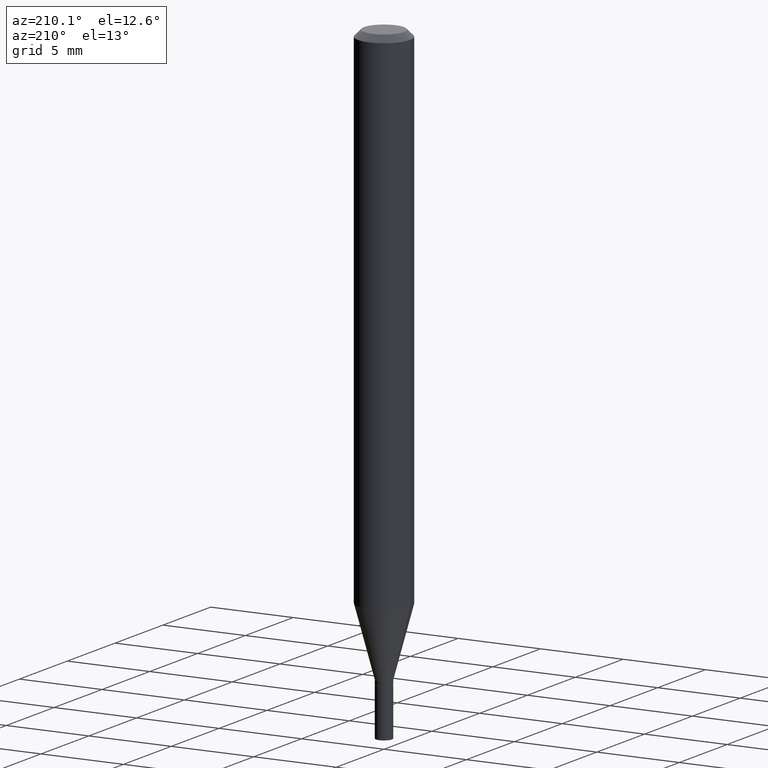
[diagram: clean part render]
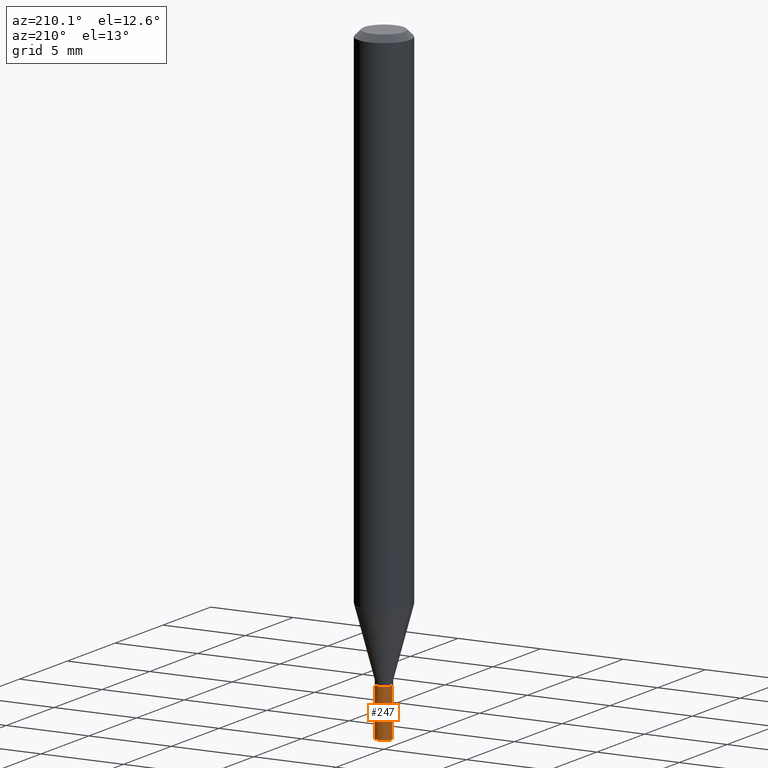
[diagram: same view with one face highlighted and labeled with its STEP entity id]
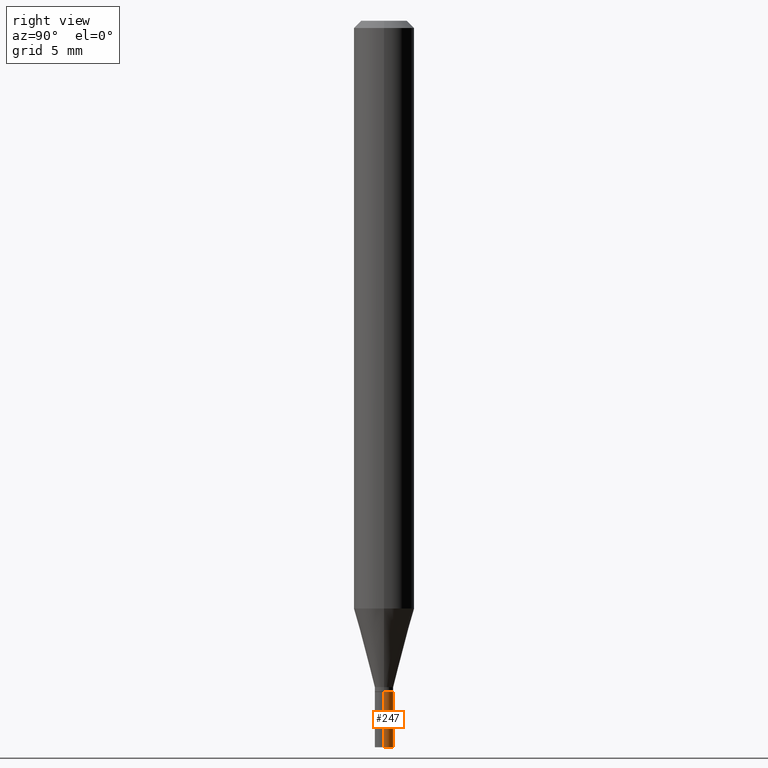
[diagram: same view with one face highlighted and labeled with its STEP entity id]
A machine part, auxiliary view. The second image highlights one B-rep face of the part: STEP entity #247.
A second angle (right view) of the same face is appended — the face is thin or edge-on in the first view.
In plain terms, the highlighted cylindrical surface (edge-blend (fillet) strip) has radius 0.4826 mm, axis along (-0, 0, 1).
Its self-contained STEP definition (entity closure, byte-faithful):
#8 = CIRCLE ( 'NONE', #28, 0.01899999999999999953 ) ;
#9 = DIRECTION ( 'NONE',  ( -2.445468806185136597E-29, 3.491481338843145583E-15, 1.000000000000000000 ) ) ;
#14 = VERTEX_POINT ( 'NONE', #415 ) ;
#16 = DIRECTION ( 'NONE',  ( -2.445468806185136877E-29, 3.491481338843145188E-15, 1.000000000000000000 ) ) ;
#26 = DIRECTION ( 'NONE',  ( 1.000000000000000000, -6.982962677686281699E-15, 0.000000000000000000 ) ) ;
#28 = AXIS2_PLACEMENT_3D ( 'NONE', #121, #418, #26 ) ;
#32 = VERTEX_POINT ( 'NONE', #166 ) ;
#33 = EDGE_CURVE ( 'NONE', #14, #32, #8, .T. ) ;
#39 = CYLINDRICAL_SURFACE ( 'NONE', #306, 0.01899999999999999953 ) ;
#47 = DIRECTION ( 'NONE',  ( 1.000000000000000000, -6.982962677686265922E-15, 4.876176775795935793E-29 ) ) ;
#63 = CARTESIAN_POINT ( 'NONE',  ( 0.01899999999999999953, -4.971869426512640168E-15, -1.386000000000000121 ) ) ;
#70 = FACE_OUTER_BOUND ( 'NONE', #100, .T. ) ;
#79 = CARTESIAN_POINT ( 'NONE',  ( -0.01899999999999999953, -4.903204452156240515E-15, -1.386000000000000121 ) ) ;
#89 = DIRECTION ( 'NONE',  ( 1.000000000000000000, -6.982962677686281699E-15, 0.000000000000000000 ) ) ;
#100 = EDGE_LOOP ( 'NONE', ( #424, #422, #205, #126 ) ) ;
#107 = EDGE_CURVE ( 'NONE', #209, #352, #392, .T. ) ;
#121 = CARTESIAN_POINT ( 'NONE',  ( 3.668203209277704895E-29, -5.237222008264718177E-15, -1.500000000000000222 ) ) ;
#126 = ORIENTED_EDGE ( 'NONE', *, *, #303, .F. ) ;
#166 = CARTESIAN_POINT ( 'NONE',  ( -0.01899999999999999953, -4.903204452156240515E-15, -1.500000000000000222 ) ) ;
#173 = CARTESIAN_POINT ( 'NONE',  ( 3.389419765372599969E-29, -4.839193135636600375E-15, -1.386000000000000121 ) ) ;
#196 = CARTESIAN_POINT ( 'NONE',  ( 0.01899999999999999953, -1.326762908760390537E-16, 9.264735874012277376E-31 ) ) ;
#203 = DIRECTION ( 'NONE',  ( -2.445468806185136597E-29, 3.491481338843145583E-15, 1.000000000000000000 ) ) ;
#205 = ORIENTED_EDGE ( 'NONE', *, *, #107, .F. ) ;
#209 = VERTEX_POINT ( 'NONE', #63 ) ;
#216 = EDGE_CURVE ( 'NONE', #32, #352, #435, .T. ) ;
#247 = ADVANCED_FACE ( 'NONE', ( #70 ), #39, .T. ) ;
#296 = DIRECTION ( 'NONE',  ( -2.445468806185136877E-29, 3.491481338843145188E-15, 1.000000000000000000 ) ) ;
#303 = EDGE_CURVE ( 'NONE', #14, #209, #367, .T. ) ;
#306 = AXIS2_PLACEMENT_3D ( 'NONE', #333, #9, #47 ) ;
#333 = CARTESIAN_POINT ( 'NONE',  ( 0.000000000000000000, 0.000000000000000000, 0.000000000000000000 ) ) ;
#352 = VERTEX_POINT ( 'NONE', #79 ) ;
#367 = LINE ( 'NONE', #196, #448 ) ;
#392 = CIRCLE ( 'NONE', #410, 0.01899999999999999953 ) ;
#410 = AXIS2_PLACEMENT_3D ( 'NONE', #173, #203, #89 ) ;
#415 = CARTESIAN_POINT ( 'NONE',  ( 0.01899999999999999953, -5.369898299140757970E-15, -1.500000000000000222 ) ) ;
#418 = DIRECTION ( 'NONE',  ( -2.445468806185136597E-29, 3.491481338843145583E-15, 1.000000000000000000 ) ) ;
#422 = ORIENTED_EDGE ( 'NONE', *, *, #216, .T. ) ;
#424 = ORIENTED_EDGE ( 'NONE', *, *, #33, .T. ) ;
#435 = LINE ( 'NONE', #440, #465 ) ;
#440 = CARTESIAN_POINT ( 'NONE',  ( -0.01899999999999999953, 1.350031197944190320E-16, -9.345976671484319990E-31 ) ) ;
#448 = VECTOR ( 'NONE', #16, 39.37007874015748143 ) ;
#465 = VECTOR ( 'NONE', #296, 39.37007874015748143 ) ;